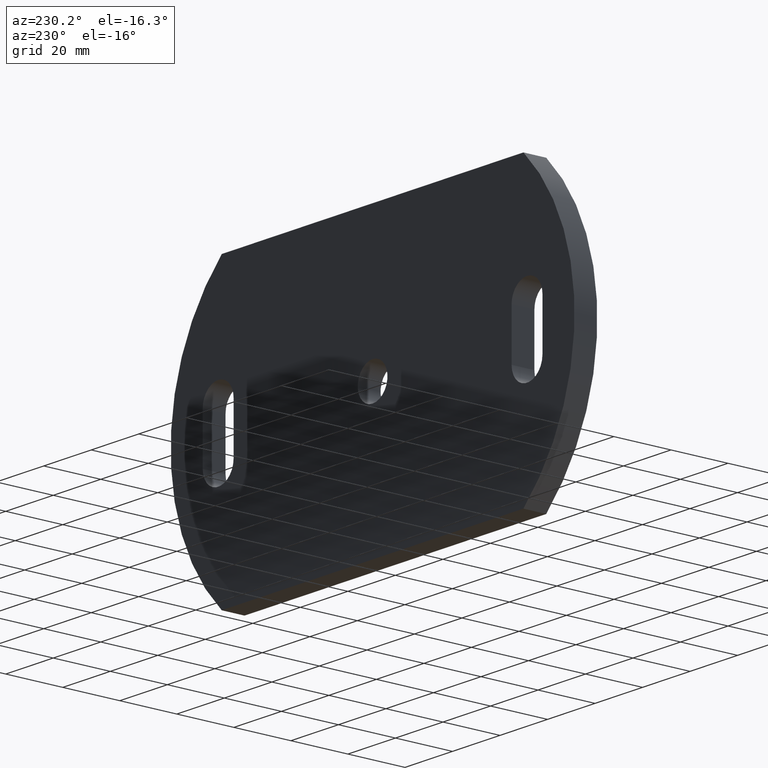
[diagram: clean part render]
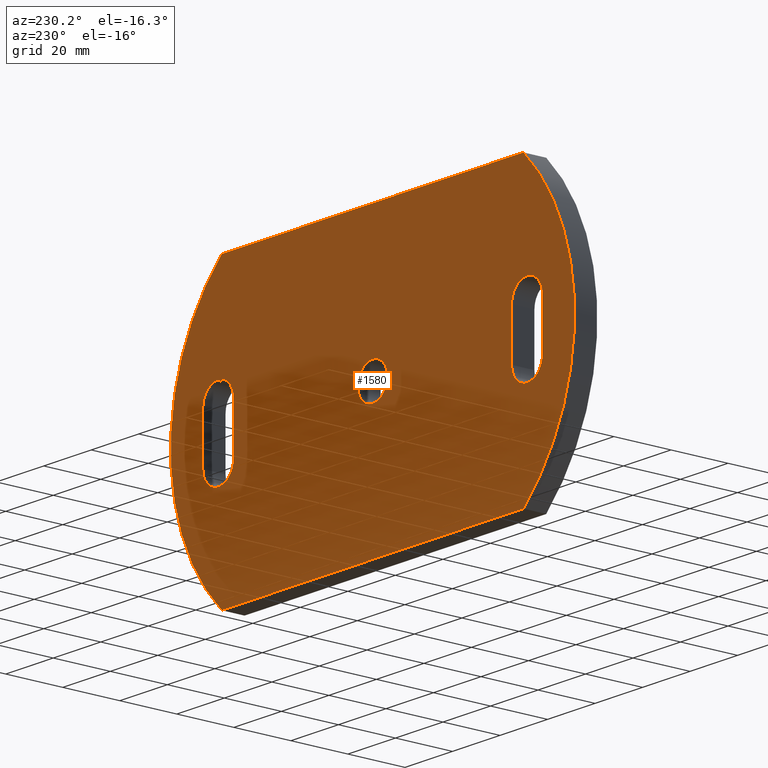
[diagram: same view with one face highlighted and labeled with its STEP entity id]
A machine part, auxiliary view. The second image highlights one B-rep face of the part: STEP entity #1580.
In plain terms, the highlighted planar face has unit normal (0, -1, 0).
Its self-contained STEP definition (entity closure, byte-faithful):
#191 = EDGE_CURVE ( 'NONE', #3195, #8717, #3783, .T. ) ;
#238 = CARTESIAN_POINT ( 'NONE',  ( 71.50000000000000000, 8.000000000000000000, 8.500000000000010700 ) ) ;
#267 = CARTESIAN_POINT ( 'NONE',  ( -58.50000000000000700, 8.000000000000000000, -8.499999999999984000 ) ) ;
#292 = CIRCLE ( 'NONE', #8640, 6.500000000000005300 ) ;
#313 = DIRECTION ( 'NONE',  ( 0.0000000000000000000, 1.000000000000000000, 0.0000000000000000000 ) ) ;
#416 = CARTESIAN_POINT ( 'NONE',  ( 0.0000000000000000000, 8.000000000000000000, 0.0000000000000000000 ) ) ;
#504 = CARTESIAN_POINT ( 'NONE',  ( -65.00000000000000000, 8.000000000000000000, 8.499999999999989300 ) ) ;
#541 = DIRECTION ( 'NONE',  ( -0.0000000000000000000, -0.0000000000000000000, -1.000000000000000000 ) ) ;
#756 = CARTESIAN_POINT ( 'NONE',  ( -65.00000000000000000, 8.000000000000000000, 8.499999999999989300 ) ) ;
#858 = DIRECTION ( 'NONE',  ( 0.0000000000000000000, 1.000000000000000000, -0.0000000000000000000 ) ) ;
#880 = CARTESIAN_POINT ( 'NONE',  ( 71.50000000000000000, 8.000000000000000000, -8.500000000000010700 ) ) ;
#925 = CARTESIAN_POINT ( 'NONE',  ( 71.50000000000000000, 8.000000000000000000, -8.500000000000010700 ) ) ;
#1056 = AXIS2_PLACEMENT_3D ( 'NONE', #11053, #858, #9443 ) ;
#1076 = DIRECTION ( 'NONE',  ( 0.0000000000000000000, 0.0000000000000000000, 1.000000000000000000 ) ) ;
#1106 = CARTESIAN_POINT ( 'NONE',  ( -63.50000000000001400, 8.000000000000000000, 49.99999999999997900 ) ) ;
#1120 = EDGE_CURVE ( 'NONE', #7907, #10067, #292, .T. ) ;
#1128 = ORIENTED_EDGE ( 'NONE', *, *, #2472, .F. ) ;
#1197 = ORIENTED_EDGE ( 'NONE', *, *, #1120, .F. ) ;
#1284 = VERTEX_POINT ( 'NONE', #4146 ) ;
#1374 = EDGE_LOOP ( 'NONE', ( #10926, #6149 ) ) ;
#1443 = EDGE_LOOP ( 'NONE', ( #3888, #3941, #1495, #3648 ) ) ;
#1464 = LINE ( 'NONE', #3828, #3472 ) ;
#1495 = ORIENTED_EDGE ( 'NONE', *, *, #8365, .T. ) ;
#1580 = ADVANCED_FACE ( 'NONE', ( #1864, #4572, #3902, #3087 ), #5771, .F. ) ;
#1602 = AXIS2_PLACEMENT_3D ( 'NONE', #3530, #5980, #9486 ) ;
#1678 = DIRECTION ( 'NONE',  ( 0.0000000000000000000, 0.0000000000000000000, 1.000000000000000000 ) ) ;
#1714 = EDGE_CURVE ( 'NONE', #10792, #1284, #1464, .T. ) ;
#1860 = DIRECTION ( 'NONE',  ( 0.0000000000000000000, 0.0000000000000000000, 1.000000000000000000 ) ) ;
#1864 = FACE_BOUND ( 'NONE', #6709, .T. ) ;
#2055 = DIRECTION ( 'NONE',  ( 0.0000000000000000000, 0.0000000000000000000, 1.000000000000000000 ) ) ;
#2138 = DIRECTION ( 'NONE',  ( 0.0000000000000000000, 1.000000000000000000, 0.0000000000000000000 ) ) ;
#2255 = CARTESIAN_POINT ( 'NONE',  ( -63.49999999999998600, 8.000000000000000000, -50.00000000000002100 ) ) ;
#2355 = CARTESIAN_POINT ( 'NONE',  ( 58.49999999999998600, 8.000000000000000000, -8.500000000000008900 ) ) ;
#2444 = CARTESIAN_POINT ( 'NONE',  ( 65.00000000000000000, 8.000000000000000000, 8.500000000000010700 ) ) ;
#2448 = CIRCLE ( 'NONE', #1056, 68.88953488372092700 ) ;
#2472 = EDGE_CURVE ( 'NONE', #3401, #5690, #10270, .T. ) ;
#2498 = LINE ( 'NONE', #6388, #2907 ) ;
#2519 = EDGE_CURVE ( 'NONE', #3583, #10792, #5737, .T. ) ;
#2591 = DIRECTION ( 'NONE',  ( 0.0000000000000000000, 0.0000000000000000000, 1.000000000000000000 ) ) ;
#2607 = ORIENTED_EDGE ( 'NONE', *, *, #6414, .F. ) ;
#2644 = AXIS2_PLACEMENT_3D ( 'NONE', #6976, #313, #2727 ) ;
#2727 = DIRECTION ( 'NONE',  ( 0.0000000000000000000, 0.0000000000000000000, 1.000000000000000000 ) ) ;
#2764 = ORIENTED_EDGE ( 'NONE', *, *, #1714, .F. ) ;
#2797 = ORIENTED_EDGE ( 'NONE', *, *, #8876, .F. ) ;
#2907 = VECTOR ( 'NONE', #4688, 1000.000000000000000 ) ;
#3087 = FACE_OUTER_BOUND ( 'NONE', #1443, .T. ) ;
#3175 = VECTOR ( 'NONE', #9284, 1000.000000000000000 ) ;
#3195 = VERTEX_POINT ( 'NONE', #7047 ) ;
#3346 = EDGE_CURVE ( 'NONE', #4260, #8723, #2498, .T. ) ;
#3366 = VERTEX_POINT ( 'NONE', #3826 ) ;
#3381 = DIRECTION ( 'NONE',  ( 0.0000000000000000000, 1.000000000000000000, 0.0000000000000000000 ) ) ;
#3401 = VERTEX_POINT ( 'NONE', #880 ) ;
#3439 = CARTESIAN_POINT ( 'NONE',  ( 0.0000000000000000000, 8.000000000000000000, 6.250000000000000000 ) ) ;
#3472 = VECTOR ( 'NONE', #2055, 1000.000000000000000 ) ;
#3530 = CARTESIAN_POINT ( 'NONE',  ( -65.00000000000000000, 8.000000000000000000, -8.500000000000010700 ) ) ;
#3578 = CARTESIAN_POINT ( 'NONE',  ( 65.00000000000000000, 8.000000000000000000, 15.00000000000001600 ) ) ;
#3583 = VERTEX_POINT ( 'NONE', #267 ) ;
#3587 = AXIS2_PLACEMENT_3D ( 'NONE', #756, #3381, #2591 ) ;
#3608 = DIRECTION ( 'NONE',  ( 0.0000000000000000000, -1.000000000000000000, 0.0000000000000000000 ) ) ;
#3622 = CARTESIAN_POINT ( 'NONE',  ( -58.50000000000000700, 8.000000000000000000, 8.499999999999984000 ) ) ;
#3648 = ORIENTED_EDGE ( 'NONE', *, *, #3346, .T. ) ;
#3783 = LINE ( 'NONE', #2255, #8317 ) ;
#3790 = CARTESIAN_POINT ( 'NONE',  ( 65.00000000000000000, 8.000000000000000000, 8.500000000000010700 ) ) ;
#3826 = CARTESIAN_POINT ( 'NONE',  ( -65.00000000000000000, 8.000000000000000000, 14.99999999999998000 ) ) ;
#3828 = CARTESIAN_POINT ( 'NONE',  ( -71.50000000000000000, 8.000000000000000000, -8.499999999999985800 ) ) ;
#3888 = ORIENTED_EDGE ( 'NONE', *, *, #4660, .T. ) ;
#3902 = FACE_BOUND ( 'NONE', #1374, .T. ) ;
#3931 = DIRECTION ( 'NONE',  ( 0.0000000000000000000, 1.000000000000000000, 0.0000000000000000000 ) ) ;
#3941 = ORIENTED_EDGE ( 'NONE', *, *, #191, .T. ) ;
#4146 = CARTESIAN_POINT ( 'NONE',  ( -71.50000000000000000, 8.000000000000000000, 8.499999999999982200 ) ) ;
#4223 = VERTEX_POINT ( 'NONE', #8692 ) ;
#4224 = CIRCLE ( 'NONE', #3587, 6.499999999999992000 ) ;
#4236 = CIRCLE ( 'NONE', #2644, 68.88953488372092700 ) ;
#4260 = VERTEX_POINT ( 'NONE', #1106 ) ;
#4313 = CARTESIAN_POINT ( 'NONE',  ( -63.49999999999997200, 8.000000000000000000, -50.00000000000002800 ) ) ;
#4382 = AXIS2_PLACEMENT_3D ( 'NONE', #504, #3931, #8910 ) ;
#4437 = CARTESIAN_POINT ( 'NONE',  ( 58.50000000000000000, 8.000000000000000000, 8.500000000000008900 ) ) ;
#4535 = LINE ( 'NONE', #9192, #10791 ) ;
#4572 = FACE_BOUND ( 'NONE', #5971, .T. ) ;
#4660 = EDGE_CURVE ( 'NONE', #8723, #3195, #2448, .T. ) ;
#4688 = DIRECTION ( 'NONE',  ( 1.000000000000000000, 0.0000000000000000000, 2.731847993664263200E-016 ) ) ;
#4737 = ORIENTED_EDGE ( 'NONE', *, *, #10020, .F. ) ;
#4874 = VECTOR ( 'NONE', #6829, 1000.000000000000000 ) ;
#5135 = DIRECTION ( 'NONE',  ( 0.0000000000000000000, 1.000000000000000000, 0.0000000000000000000 ) ) ;
#5144 = AXIS2_PLACEMENT_3D ( 'NONE', #7120, #10414, #1860 ) ;
#5477 = ORIENTED_EDGE ( 'NONE', *, *, #9797, .F. ) ;
#5690 = VERTEX_POINT ( 'NONE', #7519 ) ;
#5737 = CIRCLE ( 'NONE', #1602, 6.499999999999992000 ) ;
#5771 = PLANE ( 'NONE',  #9840 ) ;
#5789 = DIRECTION ( 'NONE',  ( 0.0000000000000000000, 0.0000000000000000000, 1.000000000000000000 ) ) ;
#5971 = EDGE_LOOP ( 'NONE', ( #2764, #10632, #2607, #5477, #2797 ) ) ;
#5980 = DIRECTION ( 'NONE',  ( 0.0000000000000000000, 1.000000000000000000, 0.0000000000000000000 ) ) ;
#6149 = ORIENTED_EDGE ( 'NONE', *, *, #8335, .F. ) ;
#6251 = ORIENTED_EDGE ( 'NONE', *, *, #8800, .F. ) ;
#6332 = CIRCLE ( 'NONE', #4382, 6.499999999999992000 ) ;
#6388 = CARTESIAN_POINT ( 'NONE',  ( -63.50000000000001400, 8.000000000000000000, 49.99999999999997900 ) ) ;
#6414 = EDGE_CURVE ( 'NONE', #10554, #3583, #4535, .T. ) ;
#6709 = EDGE_LOOP ( 'NONE', ( #9649, #1128, #4737, #1197, #6251 ) ) ;
#6745 = DIRECTION ( 'NONE',  ( 0.0000000000000000000, 0.0000000000000000000, 1.000000000000000000 ) ) ;
#6829 = DIRECTION ( 'NONE',  ( -0.0000000000000000000, -0.0000000000000000000, -1.000000000000000000 ) ) ;
#6976 = CARTESIAN_POINT ( 'NONE',  ( -16.11046511627906600, 8.000000000000000000, -3.469446951953614200E-015 ) ) ;
#7005 = CIRCLE ( 'NONE', #8731, 6.500000000000005300 ) ;
#7047 = CARTESIAN_POINT ( 'NONE',  ( 63.50000000000002800, 8.000000000000000000, -49.99999999999997200 ) ) ;
#7120 = CARTESIAN_POINT ( 'NONE',  ( 0.0000000000000000000, 8.000000000000000000, 0.0000000000000000000 ) ) ;
#7210 = CARTESIAN_POINT ( 'NONE',  ( 65.00000000000000000, 8.000000000000000000, -8.499999999999987600 ) ) ;
#7424 = DIRECTION ( 'NONE',  ( 0.0000000000000000000, 1.000000000000000000, 0.0000000000000000000 ) ) ;
#7479 = AXIS2_PLACEMENT_3D ( 'NONE', #7210, #2138, #1678 ) ;
#7519 = CARTESIAN_POINT ( 'NONE',  ( 58.49999999999998600, 8.000000000000000000, -8.500000000000008900 ) ) ;
#7795 = AXIS2_PLACEMENT_3D ( 'NONE', #416, #7424, #5789 ) ;
#7907 = VERTEX_POINT ( 'NONE', #3578 ) ;
#7974 = DIRECTION ( 'NONE',  ( 0.0000000000000000000, -0.0000000000000000000, -1.000000000000000000 ) ) ;
#8055 = EDGE_CURVE ( 'NONE', #5690, #10976, #8248, .T. ) ;
#8198 = CARTESIAN_POINT ( 'NONE',  ( -71.49999999999998600, 8.000000000000000000, -8.499999999999985800 ) ) ;
#8248 = LINE ( 'NONE', #2355, #3175 ) ;
#8317 = VECTOR ( 'NONE', #10773, 1000.000000000000000 ) ;
#8335 = EDGE_CURVE ( 'NONE', #4223, #10011, #9960, .T. ) ;
#8365 = EDGE_CURVE ( 'NONE', #8717, #4260, #4236, .T. ) ;
#8495 = EDGE_CURVE ( 'NONE', #10011, #4223, #10223, .T. ) ;
#8640 = AXIS2_PLACEMENT_3D ( 'NONE', #2444, #5135, #6745 ) ;
#8692 = CARTESIAN_POINT ( 'NONE',  ( 7.654042494670957600E-016, 8.000000000000000000, -6.250000000000000000 ) ) ;
#8714 = CARTESIAN_POINT ( 'NONE',  ( 16.11046511627908000, 8.000000000000000000, -3.469446951953614200E-015 ) ) ;
#8717 = VERTEX_POINT ( 'NONE', #4313 ) ;
#8723 = VERTEX_POINT ( 'NONE', #10405 ) ;
#8731 = AXIS2_PLACEMENT_3D ( 'NONE', #3790, #10443, #1076 ) ;
#8800 = EDGE_CURVE ( 'NONE', #10976, #7907, #7005, .T. ) ;
#8876 = EDGE_CURVE ( 'NONE', #1284, #3366, #4224, .T. ) ;
#8910 = DIRECTION ( 'NONE',  ( 0.0000000000000000000, 0.0000000000000000000, 1.000000000000000000 ) ) ;
#9192 = CARTESIAN_POINT ( 'NONE',  ( -58.50000000000000700, 8.000000000000000000, -8.499999999999984000 ) ) ;
#9284 = DIRECTION ( 'NONE',  ( 0.0000000000000000000, 0.0000000000000000000, 1.000000000000000000 ) ) ;
#9443 = DIRECTION ( 'NONE',  ( 0.0000000000000000000, 0.0000000000000000000, -1.000000000000000000 ) ) ;
#9486 = DIRECTION ( 'NONE',  ( 0.0000000000000000000, 0.0000000000000000000, 1.000000000000000000 ) ) ;
#9649 = ORIENTED_EDGE ( 'NONE', *, *, #8055, .F. ) ;
#9797 = EDGE_CURVE ( 'NONE', #3366, #10554, #6332, .T. ) ;
#9840 = AXIS2_PLACEMENT_3D ( 'NONE', #8714, #3608, #7974 ) ;
#9960 = CIRCLE ( 'NONE', #5144, 6.250000000000000000 ) ;
#10011 = VERTEX_POINT ( 'NONE', #3439 ) ;
#10020 = EDGE_CURVE ( 'NONE', #10067, #3401, #10874, .T. ) ;
#10067 = VERTEX_POINT ( 'NONE', #238 ) ;
#10223 = CIRCLE ( 'NONE', #7795, 6.250000000000000000 ) ;
#10270 = CIRCLE ( 'NONE', #7479, 6.500000000000005300 ) ;
#10405 = CARTESIAN_POINT ( 'NONE',  ( 63.49999999999998600, 8.000000000000000000, 50.00000000000001400 ) ) ;
#10414 = DIRECTION ( 'NONE',  ( 0.0000000000000000000, 1.000000000000000000, 0.0000000000000000000 ) ) ;
#10443 = DIRECTION ( 'NONE',  ( 0.0000000000000000000, 1.000000000000000000, 0.0000000000000000000 ) ) ;
#10554 = VERTEX_POINT ( 'NONE', #3622 ) ;
#10632 = ORIENTED_EDGE ( 'NONE', *, *, #2519, .F. ) ;
#10773 = DIRECTION ( 'NONE',  ( -1.000000000000000000, -0.0000000000000000000, -3.824587191129968500E-016 ) ) ;
#10791 = VECTOR ( 'NONE', #541, 1000.000000000000000 ) ;
#10792 = VERTEX_POINT ( 'NONE', #8198 ) ;
#10874 = LINE ( 'NONE', #925, #4874 ) ;
#10926 = ORIENTED_EDGE ( 'NONE', *, *, #8495, .F. ) ;
#10976 = VERTEX_POINT ( 'NONE', #4437 ) ;
#11053 = CARTESIAN_POINT ( 'NONE',  ( 16.11046511627908000, 8.000000000000000000, -3.469446951953614200E-015 ) ) ;